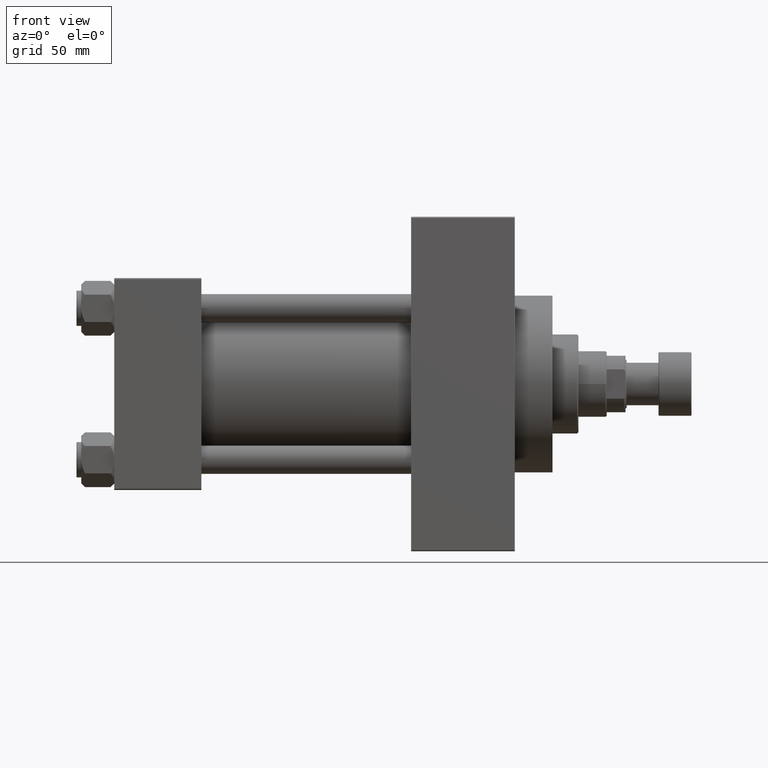
[diagram: clean part render]
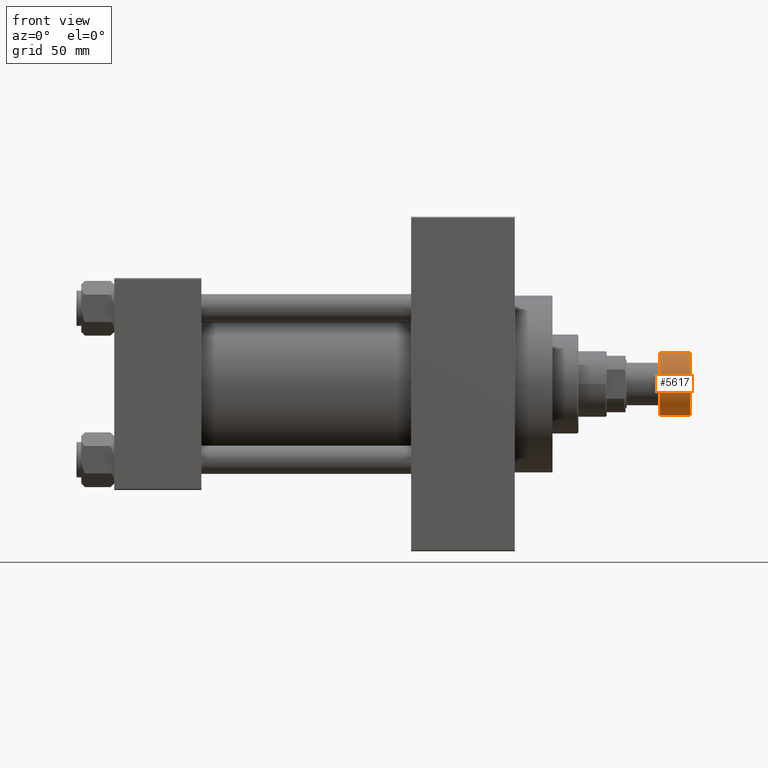
[diagram: same view with one face highlighted and labeled with its STEP entity id]
A machine part, front view. The second image highlights one B-rep face of the part: STEP entity #5617.
In plain terms, the highlighted cylindrical surface (edge-blend (fillet) strip) has radius 13.5 mm, axis along (1, 0, 0).
Its self-contained STEP definition (entity closure, byte-faithful):
#531 = VECTOR ( 'NONE', #32724, 1000.000000000000000 ) ;
#551 = EDGE_CURVE ( 'NONE', #39129, #16696, #45149, .T. ) ;
#1412 = EDGE_CURVE ( 'NONE', #39129, #13340, #3072, .T. ) ;
#1787 = EDGE_CURVE ( 'NONE', #11693, #13340, #41334, .T. ) ;
#2113 = CARTESIAN_POINT ( 'NONE',  ( -13.50000000000000000, 1.653273178848926867E-15, -13.50000000000000000 ) ) ;
#3072 = LINE ( 'NONE', #17759, #531 ) ;
#3638 = AXIS2_PLACEMENT_3D ( 'NONE', #46572, #6333, #35729 ) ;
#3657 = AXIS2_PLACEMENT_3D ( 'NONE', #27777, #16434, #20071 ) ;
#5617 = ADVANCED_FACE ( 'NONE', ( #10193 ), #28496, .T. ) ;
#6041 = CARTESIAN_POINT ( 'NONE',  ( -13.50000000000000000, 1.653273178848926867E-15, -0.5000000000000004441 ) ) ;
#6142 = CARTESIAN_POINT ( 'NONE',  ( 0.000000000000000000, 0.000000000000000000, -13.50000000000000000 ) ) ;
#6333 = DIRECTION ( 'NONE',  ( 0.000000000000000000, 0.000000000000000000, 1.000000000000000000 ) ) ;
#6385 = DIRECTION ( 'NONE',  ( 1.000000000000000000, 0.000000000000000000, 0.000000000000000000 ) ) ;
#7749 = ORIENTED_EDGE ( 'NONE', *, *, #551, .T. ) ;
#9354 = EDGE_LOOP ( 'NONE', ( #46703, #7749, #20069, #27189 ) ) ;
#10193 = FACE_OUTER_BOUND ( 'NONE', #9354, .T. ) ;
#11693 = VERTEX_POINT ( 'NONE', #35714 ) ;
#13340 = VERTEX_POINT ( 'NONE', #6041 ) ;
#16434 = DIRECTION ( 'NONE',  ( -0.000000000000000000, -0.000000000000000000, -1.000000000000000000 ) ) ;
#16696 = VERTEX_POINT ( 'NONE', #46864 ) ;
#17759 = CARTESIAN_POINT ( 'NONE',  ( -13.50000000000000000, 1.653273178848926867E-15, -14.00000000000000000 ) ) ;
#20069 = ORIENTED_EDGE ( 'NONE', *, *, #44318, .T. ) ;
#20071 = DIRECTION ( 'NONE',  ( 1.000000000000000000, 0.000000000000000000, 0.000000000000000000 ) ) ;
#24700 = DIRECTION ( 'NONE',  ( 0.000000000000000000, 0.000000000000000000, 1.000000000000000000 ) ) ;
#27189 = ORIENTED_EDGE ( 'NONE', *, *, #1787, .T. ) ;
#27777 = CARTESIAN_POINT ( 'NONE',  ( 0.000000000000000000, 0.000000000000000000, -0.5000000000000004441 ) ) ;
#28496 = CYLINDRICAL_SURFACE ( 'NONE', #3638, 13.50000000000000000 ) ;
#32724 = DIRECTION ( 'NONE',  ( 0.000000000000000000, 0.000000000000000000, 1.000000000000000000 ) ) ;
#35714 = CARTESIAN_POINT ( 'NONE',  ( 13.50000000000000000, 0.000000000000000000, -0.5000000000000004441 ) ) ;
#35729 = DIRECTION ( 'NONE',  ( 1.000000000000000000, 0.000000000000000000, 0.000000000000000000 ) ) ;
#36105 = VECTOR ( 'NONE', #43158, 1000.000000000000000 ) ;
#38234 = AXIS2_PLACEMENT_3D ( 'NONE', #6142, #24700, #6385 ) ;
#39129 = VERTEX_POINT ( 'NONE', #2113 ) ;
#41334 = CIRCLE ( 'NONE', #3657, 13.50000000000000000 ) ;
#42920 = LINE ( 'NONE', #47020, #36105 ) ;
#43158 = DIRECTION ( 'NONE',  ( 0.000000000000000000, 0.000000000000000000, 1.000000000000000000 ) ) ;
#44318 = EDGE_CURVE ( 'NONE', #16696, #11693, #42920, .T. ) ;
#45149 = CIRCLE ( 'NONE', #38234, 13.50000000000000000 ) ;
#46572 = CARTESIAN_POINT ( 'NONE',  ( 0.000000000000000000, 0.000000000000000000, -14.00000000000000000 ) ) ;
#46703 = ORIENTED_EDGE ( 'NONE', *, *, #1412, .F. ) ;
#46864 = CARTESIAN_POINT ( 'NONE',  ( 13.50000000000000000, 0.000000000000000000, -13.50000000000000000 ) ) ;
#47020 = CARTESIAN_POINT ( 'NONE',  ( 13.50000000000000000, 0.000000000000000000, -14.00000000000000000 ) ) ;